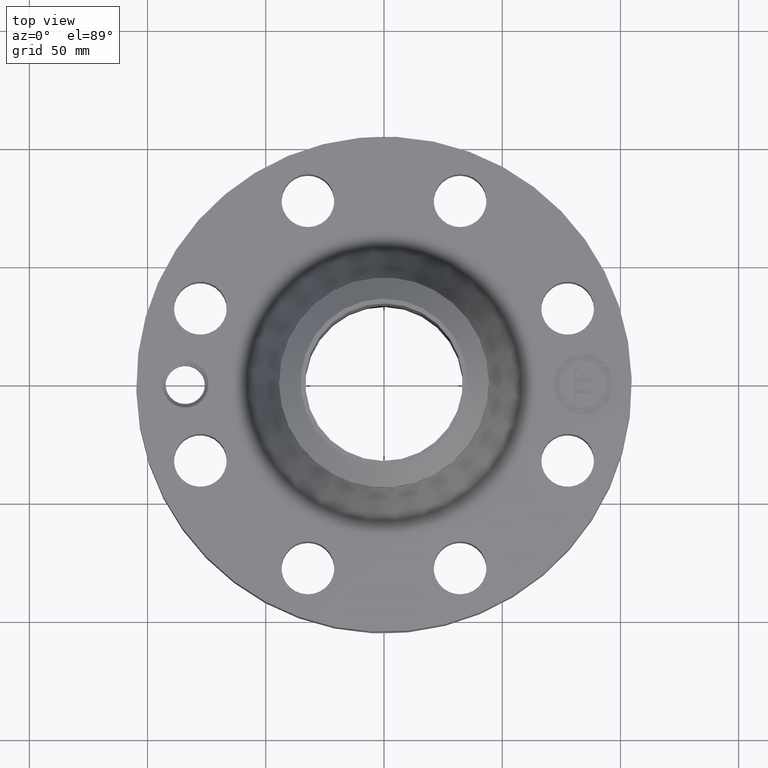
[diagram: clean part render]
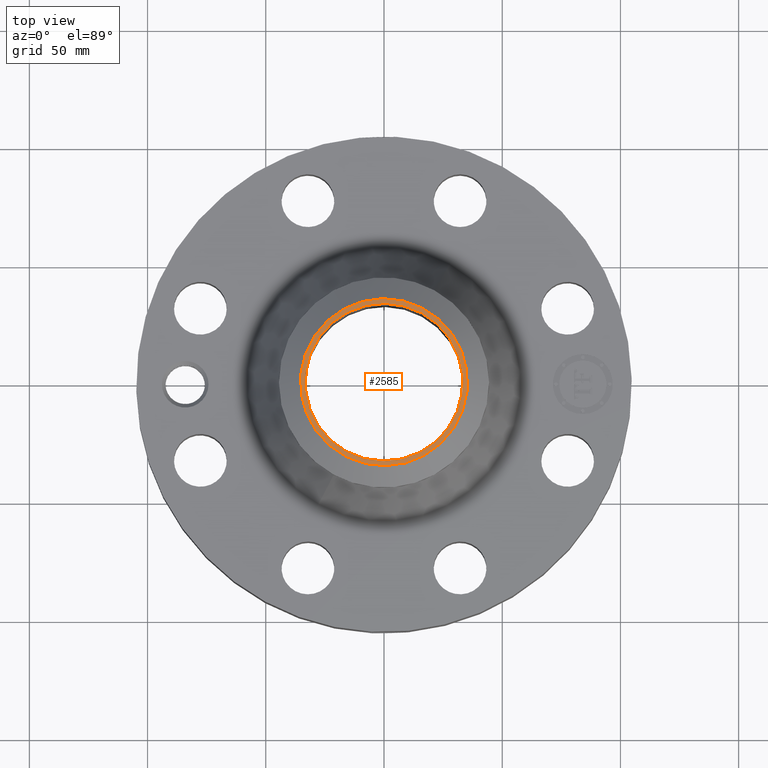
[diagram: same view with one face highlighted and labeled with its STEP entity id]
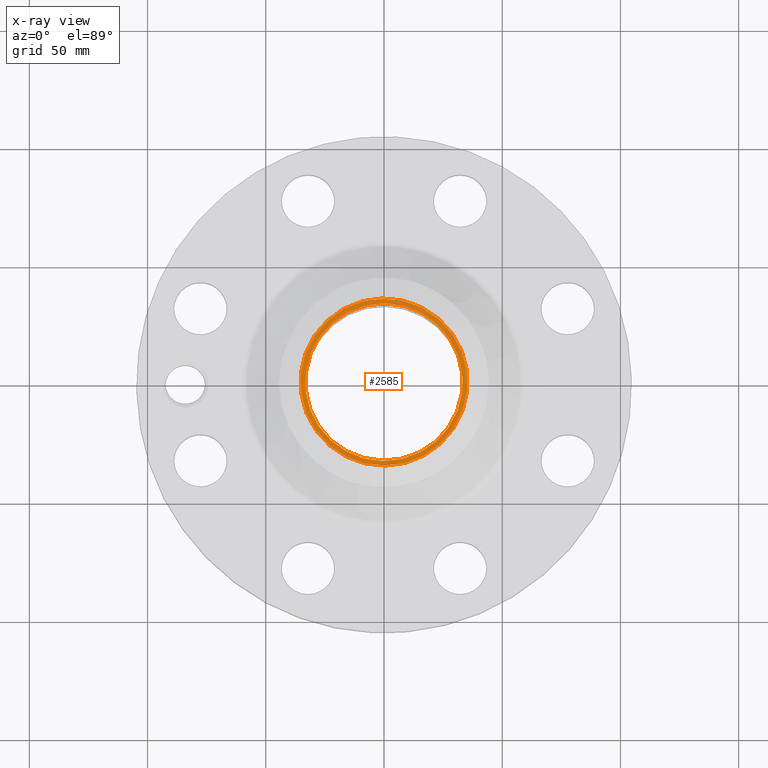
[diagram: x-ray of the same camera — body ghosted, the highlighted face saturated]
A machine part, top view. The second image highlights one B-rep face of the part: STEP entity #2585.
The next image is the same camera in x-ray: the body ghosted, the highlighted face saturated — about 0% of this face is hidden behind the body in this view.
In plain terms, the highlighted planar face has unit normal (0, 0, -1).
Its self-contained STEP definition (entity closure, byte-faithful):
#1331=AXIS2_PLACEMENT_3D('Circle Axis2P3D',#1329,#1330,$) ;
#1399=AXIS2_PLACEMENT_3D('Circle Axis2P3D',#1397,#1398,$) ;
#2561=AXIS2_PLACEMENT_3D('Plane Axis2P3D',#2558,#2559,#2560) ;
#2565=AXIS2_PLACEMENT_3D('Circle Axis2P3D',#2563,#2564,$) ;
#2574=AXIS2_PLACEMENT_3D('Circle Axis2P3D',#2572,#2573,$) ;
#1329=CARTESIAN_POINT('Axis2P3D Location',(0.,0.,3.75000000001)) ;
#1333=CARTESIAN_POINT('Vertex',(0.629006306651,1.1513883212,3.75000000001)) ;
#1335=CARTESIAN_POINT('Vertex',(-0.629006306651,-1.1513883212,3.75000000001)) ;
#1397=CARTESIAN_POINT('Axis2P3D Location',(0.,0.,3.75000000001)) ;
#2558=CARTESIAN_POINT('Axis2P3D Location',(0.,1.75000000001,3.75000000002)) ;
#2563=CARTESIAN_POINT('Axis2P3D Location',(0.,0.,3.75000000002)) ;
#2567=CARTESIAN_POINT('Vertex',(0.666756349061,-1.22048931033,3.75000000002)) ;
#2569=CARTESIAN_POINT('Vertex',(-0.666756349061,1.22048931033,3.75000000002)) ;
#2572=CARTESIAN_POINT('Axis2P3D Location',(0.,0.,3.75000000002)) ;
#1330=DIRECTION('Axis2P3D Direction',(0.,0.,-0.0393700787402)) ;
#1398=DIRECTION('Axis2P3D Direction',(0.,0.,-0.0393700787402)) ;
#2559=DIRECTION('Axis2P3D Direction',(0.,0.,-0.0393700787402)) ;
#2560=DIRECTION('Axis2P3D XDirection',(0.0393700787402,0.,0.)) ;
#2564=DIRECTION('Axis2P3D Direction',(0.,0.,-0.0393700787402)) ;
#2573=DIRECTION('Axis2P3D Direction',(0.,0.,-0.0393700787402)) ;
#2578=ORIENTED_EDGE('',*,*,#2571,.T.) ;
#2579=ORIENTED_EDGE('',*,*,#2576,.T.) ;
#2582=ORIENTED_EDGE('',*,*,#1401,.T.) ;
#2583=ORIENTED_EDGE('',*,*,#1337,.T.) ;
#2584=FACE_BOUND('',#2581,.T.) ;
#2585=ADVANCED_FACE('PartBody',(#2580,#2584),#2562,.F.) ;
#1332=CIRCLE('generated circle',#1331,1.31200000001) ;
#1400=CIRCLE('generated circle',#1399,1.31200000001) ;
#2566=CIRCLE('generated circle',#2565,1.39074015749) ;
#2575=CIRCLE('generated circle',#2574,1.39074015749) ;
#1337=EDGE_CURVE('',#1334,#1336,#1332,.T.) ;
#1401=EDGE_CURVE('',#1336,#1334,#1400,.T.) ;
#2571=EDGE_CURVE('',#2568,#2570,#2566,.F.) ;
#2576=EDGE_CURVE('',#2570,#2568,#2575,.F.) ;
#2577=EDGE_LOOP('',(#2578,#2579)) ;
#2581=EDGE_LOOP('',(#2582,#2583)) ;
#2580=FACE_OUTER_BOUND('',#2577,.T.) ;
#2562=PLANE('',#2561) ;
#1334=VERTEX_POINT('',#1333) ;
#1336=VERTEX_POINT('',#1335) ;
#2568=VERTEX_POINT('',#2567) ;
#2570=VERTEX_POINT('',#2569) ;